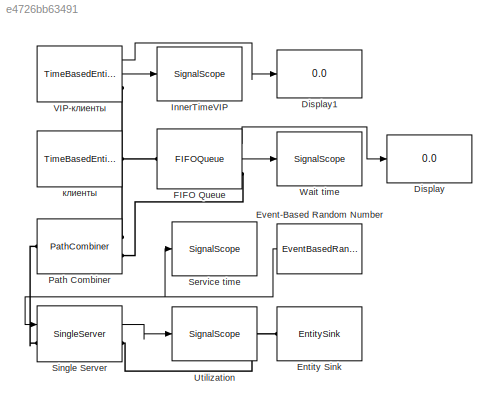
MODEL slx_e4726bb63491
KIND model
BLOCK [Display] Display
  Decimation = 1
  Lockdown = off
  Ports = [1]
BLOCK [Display] Display1
  Decimation = 1
  Lockdown = off
  Ports = [1]
BLOCK [EntitySink] Entity Sink
  Ports = [0, 0, 0, 0, 0, 1]
BLOCK [EventBasedRandomNumber] Event-Based Random Number
  Distribution = Uniform
  OutputPortMap = o0
  Ports = [0, 1]
  Seed = 1234
  maxUnif = 16
  meanExp = 15
  minUnif = 5
BLOCK [FIFOQueue] FIFO Queue
  Capacity = 20
  OutputPortMap = o0,o2
  Ports = [0, 2, 0, 0, 0, 1, 1]
  StatAverageWait = on
  StatNumberDeparted = on
BLOCK [SignalScope] InnerTimeVIP
  CopyFcn = des.scope.CallbackSupport('seCopyFcn',gcbh)
  DeleteFcn = des.scope.CallbackSupport('seDeleteFcn',gcbh)
  InputPortMap = u0
  LoadFcn = des.scope.CallbackSupport('seLoadFcn',gcbh)
  NameChangeFcn = des.scope.CallbackSupport('seNameChangeFcn',gcbh)
  OpenFcn = des.scope.CallbackSupport('seOpenFcn',gcbh)
  Ports = [1]
  PreSaveFcn = des.scope.CallbackSupport('sePreSaveFcn',gcbh)
  ShowCountPlotted = on
  StartFcn = des.scope.CallbackSupport('seStartFcn',gcbh)
  StopFcn = des.scope.CallbackSupport('seStopFcn',gcbh)
BLOCK [PathCombiner] Path Combiner
  NumberInputPorts = 2
  Ports = [0, 0, 0, 0, 0, 2, 1]
BLOCK [SignalScope] Service time
  CopyFcn = des.scope.CallbackSupport('seCopyFcn',gcbh)
  DeleteFcn = des.scope.CallbackSupport('seDeleteFcn',gcbh)
  InputPortMap = u0
  LoadFcn = des.scope.CallbackSupport('seLoadFcn',gcbh)
  NameChangeFcn = des.scope.CallbackSupport('seNameChangeFcn',gcbh)
  OpenFcn = des.scope.CallbackSupport('seOpenFcn',gcbh)
  Ports = [1]
  PreSaveFcn = des.scope.CallbackSupport('sePreSaveFcn',gcbh)
  ShowCountPlotted = on
  StartFcn = des.scope.CallbackSupport('seStartFcn',gcbh)
  StopFcn = des.scope.CallbackSupport('seStopFcn',gcbh)
BLOCK [SingleServer] Single Server
  AttributeName = servtime
  InputPortMap = u0
  OutputPortMap = o5
  Ports = [1, 1, 0, 0, 0, 1, 1]
  ServiceTimeFrom = Signal port t
  StatUtilization = on
BLOCK [SignalScope] Utilization
  CopyFcn = des.scope.CallbackSupport('seCopyFcn',gcbh)
  DeleteFcn = des.scope.CallbackSupport('seDeleteFcn',gcbh)
  InputPortMap = u0
  LoadFcn = des.scope.CallbackSupport('seLoadFcn',gcbh)
  NameChangeFcn = des.scope.CallbackSupport('seNameChangeFcn',gcbh)
  OpenFcn = des.scope.CallbackSupport('seOpenFcn',gcbh)
  Ports = [1]
  PreSaveFcn = des.scope.CallbackSupport('sePreSaveFcn',gcbh)
  ShowCountPlotted = on
  StartFcn = des.scope.CallbackSupport('seStartFcn',gcbh)
  StopFcn = des.scope.CallbackSupport('seStopFcn',gcbh)
BLOCK [TimeBasedEntityGenerator] VIP-клиенты
  Distribution = Exponential
  Mean = 60
  OutputPortMap = o0,o2
  Ports = [0, 2, 0, 0, 0, 0, 1]
  StatAverageIntergenerationTime = on
  StatNumberDeparted = on
BLOCK [SignalScope] Wait time
  CopyFcn = des.scope.CallbackSupport('seCopyFcn',gcbh)
  DeleteFcn = des.scope.CallbackSupport('seDeleteFcn',gcbh)
  InputPortMap = u0
  LoadFcn = des.scope.CallbackSupport('seLoadFcn',gcbh)
  NameChangeFcn = des.scope.CallbackSupport('seNameChangeFcn',gcbh)
  OpenFcn = des.scope.CallbackSupport('seOpenFcn',gcbh)
  Ports = [1]
  PreSaveFcn = des.scope.CallbackSupport('sePreSaveFcn',gcbh)
  ShowCountPlotted = on
  StartFcn = des.scope.CallbackSupport('seStartFcn',gcbh)
  StopFcn = des.scope.CallbackSupport('seStopFcn',gcbh)
BLOCK [TimeBasedEntityGenerator] клиенты
  Distribution = Exponential
  Mean = 15
  Ports = [0, 0, 0, 0, 0, 0, 1]
NET Event-Based Random Number:1 -> Service time:1, Single Server:1
LINE FIFO Queue:1 -> Display:1
LINE FIFO Queue:2 -> Wait time:1
LINE Single Server:1 -> Utilization:1
LINE VIP-клиенты:1 -> Display1:1
LINE VIP-клиенты:2 -> InnerTimeVIP:1
PLINE Entity Sink:LConn1 -- Single Server:RConn1
PLINE FIFO Queue:LConn1 -- клиенты:RConn1
PLINE FIFO Queue:RConn1 -- Path Combiner:LConn2
PLINE Path Combiner:LConn1 -- VIP-клиенты:RConn1
PLINE Path Combiner:RConn1 -- Single Server:LConn1
note: NET lines group one-source signal fan-out (src -> all destinations, sorted); 1:1 wires keep LINE
